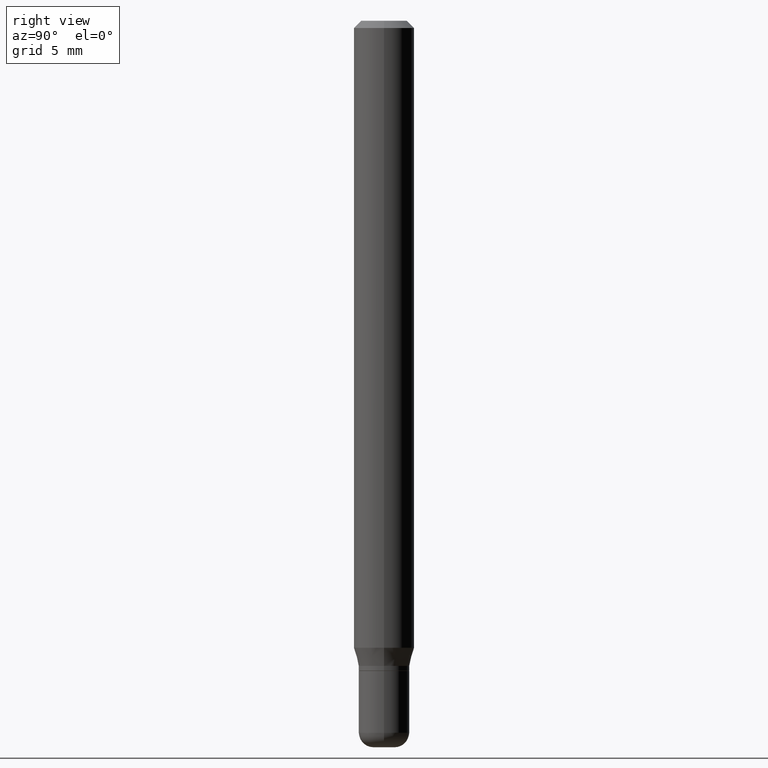
[diagram: clean part render]
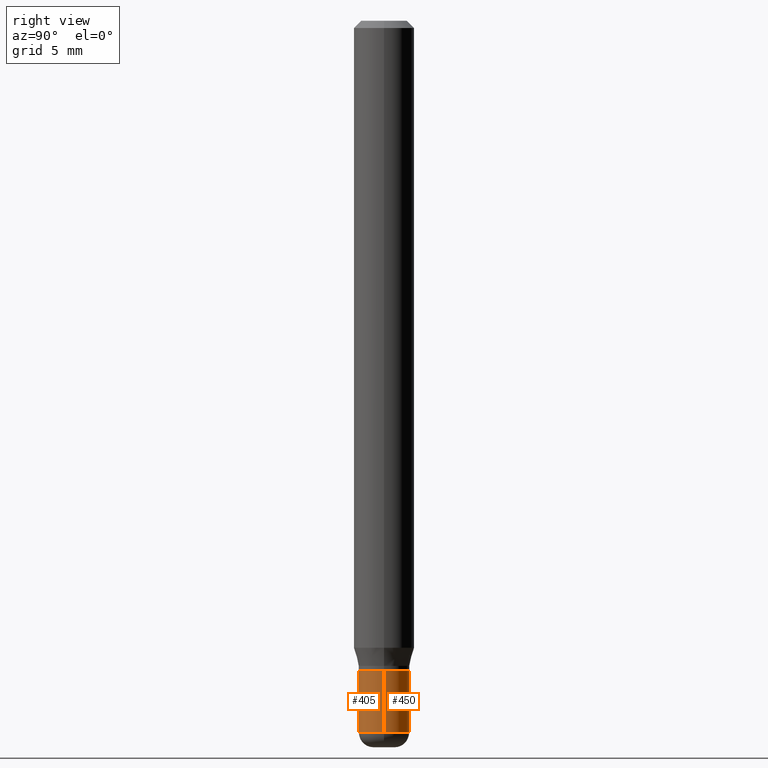
[diagram: same view with one multi-face feature highlighted, each face labeled with its STEP entity id]
A machine part, right view. The highlighted faces form ONE feature: a constant-radius fillet chain: 2 tangent blend faces with common blend radius 1.3335 mm. The faces share edges in the B-rep.
Their STEP definitions:
[1] entity #405 (Cylinder):
#29 = ORIENTED_EDGE ( 'NONE', *, *, #219, .T. ) ;
#30 = DIRECTION ( 'NONE',  ( 1.000000000000000000, -6.982962677686266711E-15, 4.876176775795936353E-29 ) ) ;
#32 = CARTESIAN_POINT ( 'NONE',  ( 0.05249999999999999806, -5.052173497306030121E-15, -1.342000000000000082 ) ) ;
#35 = DIRECTION ( 'NONE',  ( -2.445468806185136597E-29, 3.491481338843145583E-15, 1.000000000000000000 ) ) ;
#40 = FACE_OUTER_BOUND ( 'NONE', #424, .T. ) ;
#48 = CARTESIAN_POINT ( 'NONE',  ( -0.05249999999999999806, -4.535987826139409561E-15, -1.342000000000000082 ) ) ;
#54 = CARTESIAN_POINT ( 'NONE',  ( -0.05250000000000005357, 3.730349362740529782E-16, -2.582440922383828464E-30 ) ) ;
#57 = DIRECTION ( 'NONE',  ( -2.445468806185136597E-29, 3.491481338843145583E-15, 1.000000000000000000 ) ) ;
#111 = CARTESIAN_POINT ( 'NONE',  ( 0.05250000000000005357, -3.666055405785293573E-16, 2.559992807292869164E-30 ) ) ;
#125 = VECTOR ( 'NONE', #437, 39.37007874015748143 ) ;
#144 = EDGE_CURVE ( 'NONE', #363, #465, #454, .T. ) ;
#145 = CARTESIAN_POINT ( 'NONE',  ( 3.594839145092150820E-29, -5.132477568099424807E-15, -1.470000000000000195 ) ) ;
#185 = ORIENTED_EDGE ( 'NONE', *, *, #349, .F. ) ;
#198 = CARTESIAN_POINT ( 'NONE',  ( 0.05250000000000010908, -5.499083108677954756E-15, -1.470000000000000195 ) ) ;
#219 = EDGE_CURVE ( 'NONE', #363, #348, #336, .T. ) ;
#231 = CARTESIAN_POINT ( 'NONE',  ( 0.000000000000000000, 0.000000000000000000, 0.000000000000000000 ) ) ;
#236 = CARTESIAN_POINT ( 'NONE',  ( -0.05250000000000009520, -4.535987826139408772E-15, -1.470000000000000195 ) ) ;
#271 = CIRCLE ( 'NONE', #364, 0.05249999999999999806 ) ;
#289 = DIRECTION ( 'NONE',  ( -2.445468806185136877E-29, 3.491481338843145188E-15, 1.000000000000000000 ) ) ;
#299 = EDGE_CURVE ( 'NONE', #348, #391, #357, .T. ) ;
#336 = CIRCLE ( 'NONE', #488, 0.05250000000000010908 ) ;
#347 = CARTESIAN_POINT ( 'NONE',  ( 3.281819137900453057E-29, -4.685567956727500961E-15, -1.342000000000000082 ) ) ;
#348 = VERTEX_POINT ( 'NONE', #198 ) ;
#349 = EDGE_CURVE ( 'NONE', #465, #391, #271, .T. ) ;
#357 = LINE ( 'NONE', #111, #125 ) ;
#358 = ORIENTED_EDGE ( 'NONE', *, *, #144, .F. ) ;
#359 = DIRECTION ( 'NONE',  ( 1.000000000000000000, -6.982962677686268288E-15, 0.000000000000000000 ) ) ;
#363 = VERTEX_POINT ( 'NONE', #236 ) ;
#364 = AXIS2_PLACEMENT_3D ( 'NONE', #347, #401, #359 ) ;
#375 = ORIENTED_EDGE ( 'NONE', *, *, #299, .T. ) ;
#391 = VERTEX_POINT ( 'NONE', #32 ) ;
#401 = DIRECTION ( 'NONE',  ( -2.445468806185136597E-29, 3.491481338843145583E-15, 1.000000000000000000 ) ) ;
#405 = ADVANCED_FACE ( 'NONE', ( #40 ), #505, .T. ) ;
#424 = EDGE_LOOP ( 'NONE', ( #358, #29, #375, #185 ) ) ;
#437 = DIRECTION ( 'NONE',  ( -2.445468806185136877E-29, 3.491481338843145188E-15, 1.000000000000000000 ) ) ;
#454 = LINE ( 'NONE', #54, #463 ) ;
#459 = AXIS2_PLACEMENT_3D ( 'NONE', #231, #35, #30 ) ;
#463 = VECTOR ( 'NONE', #289, 39.37007874015748143 ) ;
#465 = VERTEX_POINT ( 'NONE', #48 ) ;
#467 = DIRECTION ( 'NONE',  ( 1.000000000000000000, -6.982962677686272233E-15, 0.000000000000000000 ) ) ;
#488 = AXIS2_PLACEMENT_3D ( 'NONE', #145, #57, #467 ) ;
#505 = CYLINDRICAL_SURFACE ( 'NONE', #459, 0.05250000000000005357 ) ;
[2] entity #450 (Cylinder):
#12 = DIRECTION ( 'NONE',  ( -2.445468806185136597E-29, 3.491481338843145583E-15, 1.000000000000000000 ) ) ;
#32 = CARTESIAN_POINT ( 'NONE',  ( 0.05249999999999999806, -5.052173497306030121E-15, -1.342000000000000082 ) ) ;
#48 = CARTESIAN_POINT ( 'NONE',  ( -0.05249999999999999806, -4.535987826139409561E-15, -1.342000000000000082 ) ) ;
#54 = CARTESIAN_POINT ( 'NONE',  ( -0.05250000000000005357, 3.730349362740529782E-16, -2.582440922383828464E-30 ) ) ;
#68 = ORIENTED_EDGE ( 'NONE', *, *, #491, .F. ) ;
#87 = CARTESIAN_POINT ( 'NONE',  ( 3.281819137900453057E-29, -4.685567956727500961E-15, -1.342000000000000082 ) ) ;
#109 = ORIENTED_EDGE ( 'NONE', *, *, #299, .F. ) ;
#111 = CARTESIAN_POINT ( 'NONE',  ( 0.05250000000000005357, -3.666055405785293573E-16, 2.559992807292869164E-30 ) ) ;
#125 = VECTOR ( 'NONE', #437, 39.37007874015748143 ) ;
#126 = DIRECTION ( 'NONE',  ( 1.000000000000000000, -6.982962677686268288E-15, 0.000000000000000000 ) ) ;
#144 = EDGE_CURVE ( 'NONE', #363, #465, #454, .T. ) ;
#156 = CARTESIAN_POINT ( 'NONE',  ( 3.594839145092150820E-29, -5.132477568099424807E-15, -1.470000000000000195 ) ) ;
#184 = AXIS2_PLACEMENT_3D ( 'NONE', #87, #455, #126 ) ;
#198 = CARTESIAN_POINT ( 'NONE',  ( 0.05250000000000010908, -5.499083108677954756E-15, -1.470000000000000195 ) ) ;
#212 = FACE_OUTER_BOUND ( 'NONE', #512, .T. ) ;
#236 = CARTESIAN_POINT ( 'NONE',  ( -0.05250000000000009520, -4.535987826139408772E-15, -1.470000000000000195 ) ) ;
#239 = DIRECTION ( 'NONE',  ( -2.445468806185136597E-29, 3.491481338843145583E-15, 1.000000000000000000 ) ) ;
#281 = AXIS2_PLACEMENT_3D ( 'NONE', #409, #12, #322 ) ;
#289 = DIRECTION ( 'NONE',  ( -2.445468806185136877E-29, 3.491481338843145188E-15, 1.000000000000000000 ) ) ;
#299 = EDGE_CURVE ( 'NONE', #348, #391, #357, .T. ) ;
#306 = EDGE_CURVE ( 'NONE', #348, #363, #372, .T. ) ;
#322 = DIRECTION ( 'NONE',  ( 1.000000000000000000, -6.982962677686266711E-15, 4.876176775795936353E-29 ) ) ;
#333 = ORIENTED_EDGE ( 'NONE', *, *, #144, .T. ) ;
#348 = VERTEX_POINT ( 'NONE', #198 ) ;
#357 = LINE ( 'NONE', #111, #125 ) ;
#363 = VERTEX_POINT ( 'NONE', #236 ) ;
#372 = CIRCLE ( 'NONE', #500, 0.05250000000000010908 ) ;
#373 = CYLINDRICAL_SURFACE ( 'NONE', #281, 0.05250000000000005357 ) ;
#391 = VERTEX_POINT ( 'NONE', #32 ) ;
#409 = CARTESIAN_POINT ( 'NONE',  ( 0.000000000000000000, 0.000000000000000000, 0.000000000000000000 ) ) ;
#437 = DIRECTION ( 'NONE',  ( -2.445468806185136877E-29, 3.491481338843145188E-15, 1.000000000000000000 ) ) ;
#440 = CIRCLE ( 'NONE', #184, 0.05249999999999999806 ) ;
#450 = ADVANCED_FACE ( 'NONE', ( #212 ), #373, .T. ) ;
#454 = LINE ( 'NONE', #54, #463 ) ;
#455 = DIRECTION ( 'NONE',  ( -2.445468806185136597E-29, 3.491481338843145583E-15, 1.000000000000000000 ) ) ;
#463 = VECTOR ( 'NONE', #289, 39.37007874015748143 ) ;
#465 = VERTEX_POINT ( 'NONE', #48 ) ;
#470 = ORIENTED_EDGE ( 'NONE', *, *, #306, .T. ) ;
#477 = DIRECTION ( 'NONE',  ( 1.000000000000000000, -6.982962677686272233E-15, 0.000000000000000000 ) ) ;
#491 = EDGE_CURVE ( 'NONE', #391, #465, #440, .T. ) ;
#500 = AXIS2_PLACEMENT_3D ( 'NONE', #156, #239, #477 ) ;
#512 = EDGE_LOOP ( 'NONE', ( #470, #333, #68, #109 ) ) ;